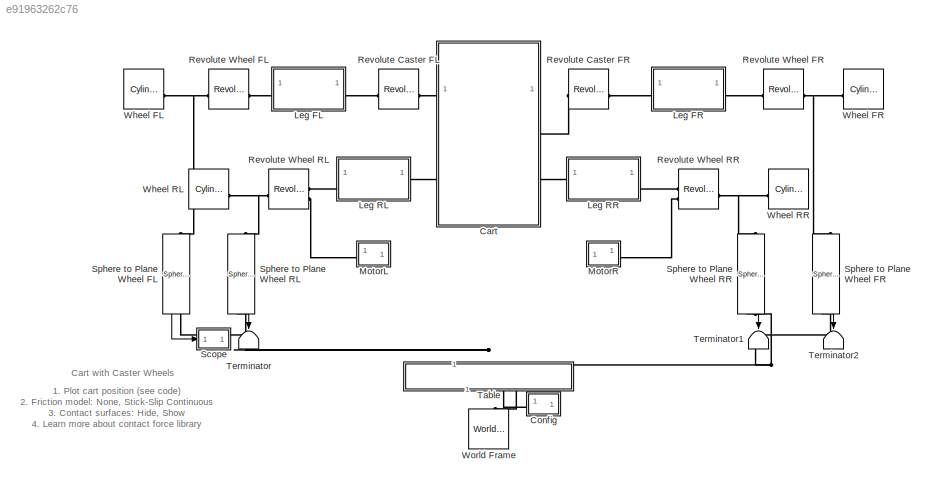
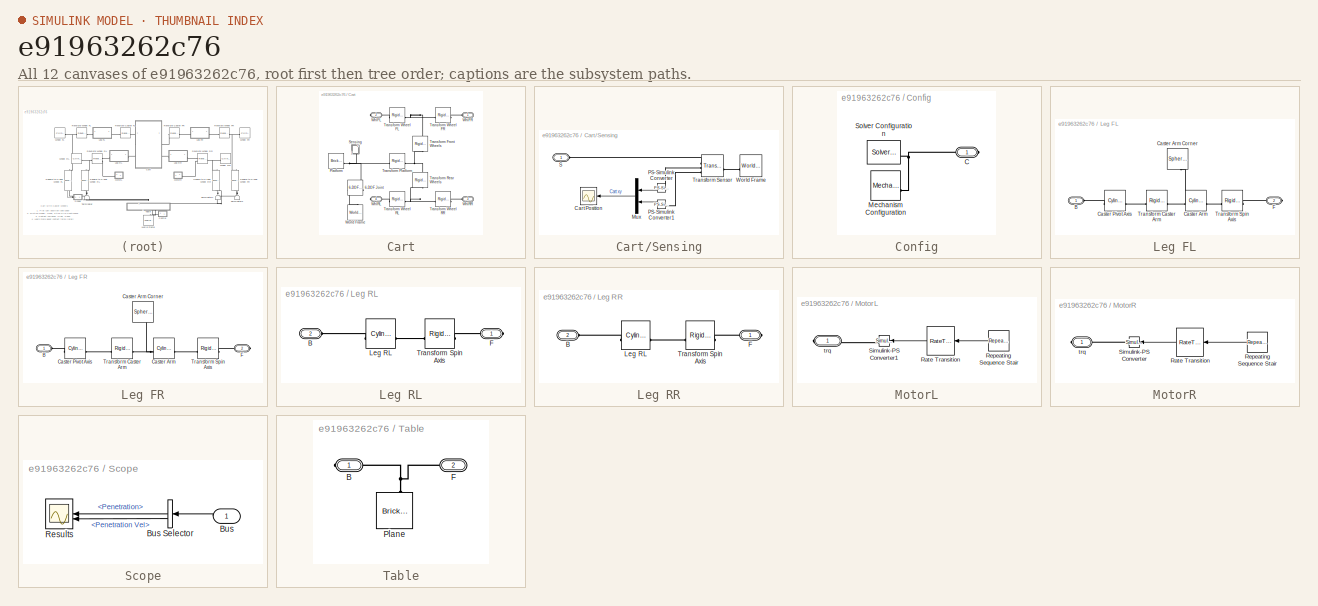
[diagram: thumbnail index - all 12 canvases of the model, root first then tree order]
MODEL slx_e91963262c76
KIND model
CONFIG AbsTol = 1e-5
CONFIG EnableMultiTasking = on
CONFIG FixedStep = 1e-3
CONFIG MaxStep = 0.01
CONFIG MinStep = auto
CONFIG RelTol = 1e-4
CONFIG SampleTimeConstraint = Unconstrained
CONFIG SolverName = ode23t
CONFIG StartFcn = tic;
CONFIG StartTime = 0.0
CONFIG StopFcn = Elapsed_Sim_Time = toc;\ndisp(['Elapsed Sim Time = ' num2str(Elapsed_Sim_Time)]);\n
CONFIG StopTime = 30
WORKSPACE source: MATLAB code (in-file)
WORKSPACE code: whl.rad = 0.02;
WORKSPACE code: whl.thickness = 0.005;
WORKSPACE code: axle.length = 0.2;
WORKSPACE code: axle.radius = 0.005;
WORKSPACE code: platform.width = 0.1;
WORKSPACE code: platform.length = 0.15;
WORKSPACE code: platform.thickness = 0.005;
WORKSPACE code: platform.offset = 0.05;
WORKSPACE code: caster_axis.rad = 0.005;
WORKSPACE code: caster_axis.length = 0.03;
WORKSPACE code: bumper.rad = platform.offset+whl.rad;
WORKSPACE code: table.length = 0.5;
WORKSPACE code: table.thickness = 0.01;
WORKSPACE code: tableWhl.contact.k = 1e3;
WORKSPACE code: tableWhl.contact.b = 1e2;
WORKSPACE code: steel.density = 8000; %kg/m^3
WORKSPACE code: start_pos.x = -0.2;
WORKSPACE code: start_pos.y = 0.2;
WORKSPACE l_whl_trq = [0 0 0 0.5 0 0 0 -0.5 1.0 0 0 0 -1.0 0.5 0 0 0 -0.5 -1.5 0 0 0 1.5].'*0.00005
WORKSPACE r_whl_trq = [0 0 0 2.0 0 0 0 -2.0 1.0 0 0 0 -1.0 1.0 0 0 0 -1.0 -1.5 0 0 0 1.5].'*0.00005
WORKSPACE muk = 0.7
WORKSPACE mus = 0.5
WORKSPACE vth = 1e-2  (= 0.01)
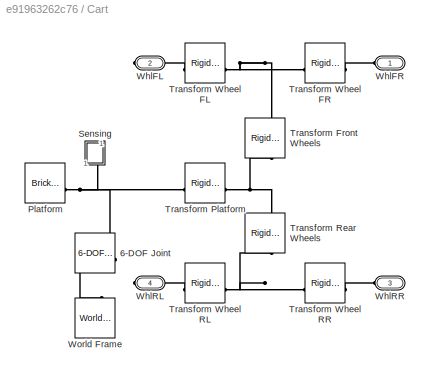
BLOCK [SubSystem] Cart
  Tag = CustomStyle
BLOCK [Reference] Cart/6-DOF Joint  REF=sm_lib/Joints/6-DOF Joint
  NameLocation = top
  SourceBlock = sm_lib/Joints/6-DOF Joint
  SourceType = 6-DOF Joint
BLOCK [Reference] Cart/Platform  REF=sm_lib/Body Elements/Brick Solid
  SourceBlock = sm_lib/Body Elements/Brick Solid
  SourceType = Brick Solid
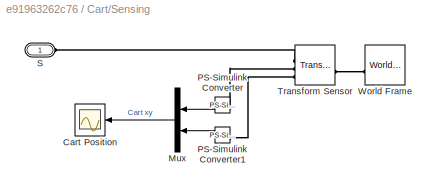
BLOCK [SubSystem] Cart/Sensing
  NameLocation = right
BLOCK [Scope] Cart/Sensing/Cart Position
  Floating = off
  NumInputPorts = 1
  ScopeSpecificationString = Simulink.scopes.TimeScopeBlockCfg('CurrentConfiguration', extmgr.ConfigurationSet(extmgr.Configuration('Core','General UI',true),extmgr.Configuration('Core','Source UI',true),extmgr.Configuration('Sources','WiredSimulink',true,'DataLoggingVariableName','ScopeData1','DataLoggingSaveFormat','Array','DataLoggingDecimation','1','DataLoggingDecimateData',true),extmgr.Configuration('Visuals','Time Domai...<+1611ch>
BLOCK [Mux] Cart/Sensing/Mux
  DisplayOption = bar
  Inputs = 2
  NameLocation = top
BLOCK [Reference] Cart/Sensing/PS-Simulink Converter  REF=nesl_utility/PS-Simulink
Converter
  NameLocation = top
  SourceBlock = nesl_utility/PS-Simulink\nConverter
  SourceType = PS-Simulink\nConverter
BLOCK [Reference] Cart/Sensing/PS-Simulink Converter1  REF=nesl_utility/PS-Simulink
Converter
  NameLocation = top
  SourceBlock = nesl_utility/PS-Simulink\nConverter
  SourceType = PS-Simulink\nConverter
BLOCK [PMIOPort] Cart/Sensing/S
  Side = Left
BLOCK [Reference] Cart/Sensing/Transform Sensor  REF=sm_lib/Frames and
Transforms/Transform
Sensor
  SourceBlock = sm_lib/Frames and\nTransforms/Transform\nSensor
  SourceType = Transform\nSensor
BLOCK [Reference] Cart/Sensing/World Frame  REF=sm_lib/Frames and
Transforms/World Frame
  SourceBlock = sm_lib/Frames and\nTransforms/World Frame
  SourceType = World Frame
BLOCK [Reference] Cart/Transform Front Wheels  REF=sm_lib/Frames and
Transforms/Rigid
Transform
  NameLocation = right
  SourceBlock = sm_lib/Frames and\nTransforms/Rigid\nTransform
  SourceType = Rigid\nTransform
BLOCK [Reference] Cart/Transform Platform  REF=sm_lib/Frames and
Transforms/Rigid
Transform
  SourceBlock = sm_lib/Frames and\nTransforms/Rigid\nTransform
  SourceType = Rigid\nTransform
BLOCK [Reference] Cart/Transform Rear Wheels  REF=sm_lib/Frames and
Transforms/Rigid
Transform
  NameLocation = right
  SourceBlock = sm_lib/Frames and\nTransforms/Rigid\nTransform
  SourceType = Rigid\nTransform
BLOCK [Reference] Cart/Transform Wheel FL  REF=sm_lib/Frames and
Transforms/Rigid
Transform
  SourceBlock = sm_lib/Frames and\nTransforms/Rigid\nTransform
  SourceType = Rigid\nTransform
BLOCK [Reference] Cart/Transform Wheel FR  REF=sm_lib/Frames and
Transforms/Rigid
Transform
  SourceBlock = sm_lib/Frames and\nTransforms/Rigid\nTransform
  SourceType = Rigid\nTransform
BLOCK [Reference] Cart/Transform Wheel RL  REF=sm_lib/Frames and
Transforms/Rigid
Transform
  SourceBlock = sm_lib/Frames and\nTransforms/Rigid\nTransform
  SourceType = Rigid\nTransform
BLOCK [Reference] Cart/Transform Wheel RR  REF=sm_lib/Frames and
Transforms/Rigid
Transform
  SourceBlock = sm_lib/Frames and\nTransforms/Rigid\nTransform
  SourceType = Rigid\nTransform
BLOCK [PMIOPort] Cart/WhlFL
  Port = 2
  Side = Right
BLOCK [PMIOPort] Cart/WhlFR
  Side = Left
BLOCK [PMIOPort] Cart/WhlRL
  Port = 4
  Side = Right
BLOCK [PMIOPort] Cart/WhlRR
  Port = 3
  Side = Left
BLOCK [Reference] Cart/World Frame  REF=sm_lib/Frames and
Transforms/World Frame
  NameLocation = left
  SourceBlock = sm_lib/Frames and\nTransforms/World Frame
  SourceType = World Frame
BLOCK [SubSystem] Config
BLOCK [PMIOPort] Config/C
  Side = Right
BLOCK [Reference] Config/Mechanism Configuration  REF=sm_lib/Utilities/Mechanism
Configuration
  SourceBlock = sm_lib/Utilities/Mechanism\nConfiguration
  SourceType = Mechanism\nConfiguration
BLOCK [Reference] Config/Solver Configuration  REF=nesl_utility/Solver
Configuration
  SourceBlock = nesl_utility/Solver\nConfiguration
  SourceType = Solver\nConfiguration
BLOCK [SubSystem] Leg FL
BLOCK [PMIOPort] Leg FL/B
  Side = Left
BLOCK [Reference] Leg FL/Caster Arm  REF=sm_lib/Body Elements/Cylindrical Solid
  SourceBlock = sm_lib/Body Elements/Cylindrical Solid
  SourceType = Cylindrical Solid
BLOCK [Reference] Leg FL/Caster Arm Corner  REF=sm_lib/Body Elements/Spherical Solid
  NameLocation = left
  SourceBlock = sm_lib/Body Elements/Spherical Solid
  SourceType = Spherical Solid
BLOCK [Reference] Leg FL/Caster Pivot Axis  REF=sm_lib/Body Elements/Cylindrical Solid
  SourceBlock = sm_lib/Body Elements/Cylindrical Solid
  SourceType = Cylindrical Solid
BLOCK [PMIOPort] Leg FL/F
  Port = 2
  Side = Right
BLOCK [Reference] Leg FL/Transform Caster Arm  REF=sm_lib/Frames and
Transforms/Rigid
Transform
  SourceBlock = sm_lib/Frames and\nTransforms/Rigid\nTransform
  SourceType = Rigid\nTransform
BLOCK [Reference] Leg FL/Transform Spin Axis  REF=sm_lib/Frames and
Transforms/Rigid
Transform
  SourceBlock = sm_lib/Frames and\nTransforms/Rigid\nTransform
  SourceType = Rigid\nTransform
BLOCK [SubSystem] Leg FR
BLOCK [PMIOPort] Leg FR/B
  Side = Left
BLOCK [Reference] Leg FR/Caster Arm  REF=sm_lib/Body Elements/Cylindrical Solid
  SourceBlock = sm_lib/Body Elements/Cylindrical Solid
  SourceType = Cylindrical Solid
BLOCK [Reference] Leg FR/Caster Arm Corner  REF=sm_lib/Body Elements/Spherical Solid
  NameLocation = left
  SourceBlock = sm_lib/Body Elements/Spherical Solid
  SourceType = Spherical Solid
BLOCK [Reference] Leg FR/Caster Pivot Axis  REF=sm_lib/Body Elements/Cylindrical Solid
  SourceBlock = sm_lib/Body Elements/Cylindrical Solid
  SourceType = Cylindrical Solid
BLOCK [PMIOPort] Leg FR/F
  Port = 2
  Side = Right
BLOCK [Reference] Leg FR/Transform Caster Arm  REF=sm_lib/Frames and
Transforms/Rigid
Transform
  SourceBlock = sm_lib/Frames and\nTransforms/Rigid\nTransform
  SourceType = Rigid\nTransform
BLOCK [Reference] Leg FR/Transform Spin Axis  REF=sm_lib/Frames and
Transforms/Rigid
Transform
  SourceBlock = sm_lib/Frames and\nTransforms/Rigid\nTransform
  SourceType = Rigid\nTransform
BLOCK [SubSystem] Leg RL
BLOCK [PMIOPort] Leg RL/B
  Port = 2
  Side = Left
BLOCK [PMIOPort] Leg RL/F
  Side = Right
BLOCK [Reference] Leg RL/Leg RL  REF=sm_lib/Body Elements/Cylindrical Solid
  SourceBlock = sm_lib/Body Elements/Cylindrical Solid
  SourceType = Cylindrical Solid
BLOCK [Reference] Leg RL/Transform Spin Axis  REF=sm_lib/Frames and
Transforms/Rigid
Transform
  SourceBlock = sm_lib/Frames and\nTransforms/Rigid\nTransform
  SourceType = Rigid\nTransform
BLOCK [SubSystem] Leg RR
BLOCK [PMIOPort] Leg RR/B
  Port = 2
  Side = Left
BLOCK [PMIOPort] Leg RR/F
  Side = Right
BLOCK [Reference] Leg RR/Leg RL  REF=sm_lib/Body Elements/Cylindrical Solid
  SourceBlock = sm_lib/Body Elements/Cylindrical Solid
  SourceType = Cylindrical Solid
BLOCK [Reference] Leg RR/Transform Spin Axis  REF=sm_lib/Frames and
Transforms/Rigid
Transform
  SourceBlock = sm_lib/Frames and\nTransforms/Rigid\nTransform
  SourceType = Rigid\nTransform
BLOCK [SubSystem] MotorL
BLOCK [RateTransition] MotorL/Rate Transition
BLOCK [Reference] MotorL/Repeating Sequence Stair  REF=simulink/Sources/Repeating
Sequence
Stair
  SourceBlock = simulink/Sources/Repeating\nSequence\nStair
  SourceType = Repeating Sequence Stair
BLOCK [Reference] MotorL/Simulink-PS Converter1  REF=nesl_utility/Simulink-PS
Converter
  SourceBlock = nesl_utility/Simulink-PS\nConverter
  SourceType = Simulink-PS\nConverter
BLOCK [PMIOPort] MotorL/trq
  NameLocation = top
  Side = Right
BLOCK [SubSystem] MotorR
BLOCK [RateTransition] MotorR/Rate Transition
BLOCK [Reference] MotorR/Repeating Sequence Stair  REF=simulink/Sources/Repeating
Sequence
Stair
  SourceBlock = simulink/Sources/Repeating\nSequence\nStair
  SourceType = Repeating Sequence Stair
BLOCK [Reference] MotorR/Simulink-PS Converter  REF=nesl_utility/Simulink-PS
Converter
  SourceBlock = nesl_utility/Simulink-PS\nConverter
  SourceType = Simulink-PS\nConverter
BLOCK [PMIOPort] MotorR/trq
  NameLocation = top
  Side = Right
BLOCK [Reference] Revolute Caster FL  REF=sm_lib/Joints/Revolute Joint
  SourceBlock = sm_lib/Joints/Revolute Joint
  SourceType = Revolute Joint
BLOCK [Reference] Revolute Caster FR  REF=sm_lib/Joints/Revolute Joint
  SourceBlock = sm_lib/Joints/Revolute Joint
  SourceType = Revolute Joint
BLOCK [Reference] Revolute Wheel FL  REF=sm_lib/Joints/Revolute Joint
  SourceBlock = sm_lib/Joints/Revolute Joint
  SourceType = Revolute Joint
BLOCK [Reference] Revolute Wheel FR  REF=sm_lib/Joints/Revolute Joint
  SourceBlock = sm_lib/Joints/Revolute Joint
  SourceType = Revolute Joint
BLOCK [Reference] Revolute Wheel RL  REF=sm_lib/Joints/Revolute Joint
  SourceBlock = sm_lib/Joints/Revolute Joint
  SourceType = Revolute Joint
BLOCK [Reference] Revolute Wheel RR  REF=sm_lib/Joints/Revolute Joint
  SourceBlock = sm_lib/Joints/Revolute Joint
  SourceType = Revolute Joint
BLOCK [SubSystem] Scope
  NameLocation = top
BLOCK [Inport] Scope/Bus
BLOCK [BusSelector] Scope/Bus Selector
  NameLocation = top
  OutputSignals = Penetration,Penetration Vel
BLOCK [Scope] Scope/Results
  Floating = off
  NameLocation = top
  NumInputPorts = 2
  ScopeSpecificationString = Simulink.scopes.TimeScopeBlockCfg('CurrentConfiguration', extmgr.ConfigurationSet(extmgr.Configuration('Core','General UI',true,'FigureColor',[0.501960784313725 0.501960784313725 0.501960784313725]),extmgr.Configuration('Core','Source UI',true),extmgr.Configuration('Sources','WiredSimulink',true,'DataLoggingVariableName','ScopeData1','DataLoggingSaveFormat','StructureWithTime','DataLoggingDecimati...<+3757ch>
  Tag = PublishScope
BLOCK [Reference] Sphere to Plane Wheel FL  REF=Contact_Forces_Lib/3D/Sphere to Plane Force
  NameLocation = left
  SourceBlock = Contact_Forces_Lib/3D/Sphere to Plane Force
  SourceProductName = Simscape Multibody Contact Forces Library
  SourceType = Sphere to Plane Force
BLOCK [Reference] Sphere to Plane Wheel FR  REF=Contact_Forces_Lib/3D/Sphere to Plane Force
  NameLocation = right
  SourceBlock = Contact_Forces_Lib/3D/Sphere to Plane Force
  SourceProductName = Simscape Multibody Contact Forces Library
  SourceType = Sphere to Plane Force
BLOCK [Reference] Sphere to Plane Wheel RL  REF=Contact_Forces_Lib/3D/Sphere to Plane Force
  NameLocation = right
  SourceBlock = Contact_Forces_Lib/3D/Sphere to Plane Force
  SourceProductName = Simscape Multibody Contact Forces Library
  SourceType = Sphere to Plane Force
BLOCK [Reference] Sphere to Plane Wheel RR  REF=Contact_Forces_Lib/3D/Sphere to Plane Force
  NameLocation = left
  SourceBlock = Contact_Forces_Lib/3D/Sphere to Plane Force
  SourceProductName = Simscape Multibody Contact Forces Library
  SourceType = Sphere to Plane Force
BLOCK [SubSystem] Table
  NameLocation = right
  Tag = CustomStyle
BLOCK [PMIOPort] Table/B
  NameLocation = top
  Side = Right
BLOCK [PMIOPort] Table/F
  NameLocation = top
  Port = 2
  Side = Left
BLOCK [Reference] Table/Plane  REF=sm_lib/Body Elements/Brick Solid
  NameLocation = right
  SourceBlock = sm_lib/Body Elements/Brick Solid
  SourceType = Brick Solid
BLOCK [Terminator] Terminator
  NameLocation = right
BLOCK [Terminator] Terminator1
  NameLocation = right
BLOCK [Terminator] Terminator2
  NameLocation = left
BLOCK [Reference] Wheel FL  REF=Parts_Lib/Cylinder
  SourceBlock = Parts_Lib/Cylinder
  SourceType = Solid Cylinder with Markings
  Tag = CustomStyle
BLOCK [Reference] Wheel FR  REF=Parts_Lib/Cylinder
  SourceBlock = Parts_Lib/Cylinder
  SourceType = Solid Cylinder with Markings
  Tag = CustomStyle
BLOCK [Reference] Wheel RL  REF=Parts_Lib/Cylinder
  SourceBlock = Parts_Lib/Cylinder
  SourceType = Solid Cylinder with Markings
  Tag = CustomStyle
BLOCK [Reference] Wheel RR  REF=Parts_Lib/Cylinder
  SourceBlock = Parts_Lib/Cylinder
  SourceType = Solid Cylinder with Markings
  Tag = CustomStyle
BLOCK [Reference] World Frame  REF=sm_lib/Frames and
Transforms/World Frame
  NameLocation = left
  SourceBlock = sm_lib/Frames and\nTransforms/World Frame
  SourceType = World Frame
ANNOTATION (root): 1. Plot cart position ( see code ) 2. Friction model: None , Stick-Slip Continuous 3. Contact surfaces: Hide , Show 4. Learn more about contact force library
ANNOTATION (root): Cart with Caster Wheels
LINE Cart/Sensing/Mux:1 -> Cart/Sensing/Cart Position:1
LINE Cart/Sensing/PS-Simulink Converter1:1 -> Cart/Sensing/Mux:2
LINE Cart/Sensing/PS-Simulink Converter:1 -> Cart/Sensing/Mux:1
LINE MotorL/Rate Transition:1 -> MotorL/Simulink-PS Converter1:1
LINE MotorL/Repeating Sequence Stair:1 -> MotorL/Rate Transition:1
LINE MotorR/Rate Transition:1 -> MotorR/Simulink-PS Converter:1
LINE MotorR/Repeating Sequence Stair:1 -> MotorR/Rate Transition:1
LINE Scope/Bus Selector:1 -> Scope/Results:1
LINE Scope/Bus Selector:2 -> Scope/Results:2
LINE Scope/Bus:1 -> Scope/Bus Selector:1
LINE Sphere to Plane Wheel FL:1 -> Scope:1
LINE Sphere to Plane Wheel FR:1 -> Terminator2:1
LINE Sphere to Plane Wheel RL:1 -> Terminator:1
LINE Sphere to Plane Wheel RR:1 -> Terminator1:1
PLINE Cart/6-DOF Joint:LConn1 -- Cart/World Frame:RConn1
PNET net1: Cart/6-DOF Joint:RConn1 -- Cart/Platform:RConn1 -- Cart/Sensing:LConn1 -- Cart/Transform Platform:LConn1
PLINE Cart/Sensing/PS-Simulink Converter1:LConn1 -- Cart/Sensing/Transform Sensor:RConn3
PLINE Cart/Sensing/PS-Simulink Converter:LConn1 -- Cart/Sensing/Transform Sensor:RConn2
PLINE Cart/Sensing/S:RConn1 -- Cart/Sensing/Transform Sensor:RConn1
PLINE Cart/Sensing/Transform Sensor:LConn1 -- Cart/Sensing/World Frame:RConn1
PNET net2: Cart/Transform Front Wheels:LConn1 -- Cart/Transform Platform:RConn1 -- Cart/Transform Rear Wheels:RConn1
PNET net3: Cart/Transform Front Wheels:RConn1 -- Cart/Transform Wheel FL:LConn1 -- Cart/Transform Wheel FR:RConn1
PNET net4: Cart/Transform Rear Wheels:LConn1 -- Cart/Transform Wheel RL:LConn1 -- Cart/Transform Wheel RR:RConn1
PLINE Cart/Transform Wheel FL:RConn1 -- Cart/WhlFL:RConn1
PLINE Cart/Transform Wheel FR:LConn1 -- Cart/WhlFR:RConn1
PLINE Cart/Transform Wheel RL:RConn1 -- Cart/WhlRL:RConn1
PLINE Cart/Transform Wheel RR:LConn1 -- Cart/WhlRR:RConn1
PLINE Cart:LConn1 -- Revolute Caster FR:LConn1
PLINE Cart:LConn2 -- Leg RR:LConn1
PLINE Cart:RConn1 -- Revolute Caster FL:LConn1
PLINE Cart:RConn2 -- Leg RL:LConn1
PNET net5: Config/C:RConn1 -- Config/Mechanism Configuration:RConn1 -- Config/Solver Configuration:RConn1
PNET net6: Config:RConn1 -- Table:RConn1 -- World Frame:RConn1
PLINE Leg FL/B:RConn1 -- Leg FL/Caster Pivot Axis:LConn1
PNET net7: Leg FL/Caster Arm Corner:RConn1 -- Leg FL/Caster Arm:LConn1 -- Leg FL/Transform Caster Arm:RConn1
PLINE Leg FL/Caster Arm:RConn1 -- Leg FL/Transform Spin Axis:LConn1
PLINE Leg FL/Caster Pivot Axis:RConn1 -- Leg FL/Transform Caster Arm:LConn1
PLINE Leg FL/F:RConn1 -- Leg FL/Transform Spin Axis:RConn1
PLINE Leg FL:LConn1 -- Revolute Caster FL:RConn1
PLINE Leg FL:RConn1 -- Revolute Wheel FL:LConn1
PLINE Leg FR/B:RConn1 -- Leg FR/Caster Pivot Axis:LConn1
PNET net8: Leg FR/Caster Arm Corner:RConn1 -- Leg FR/Caster Arm:LConn1 -- Leg FR/Transform Caster Arm:RConn1
PLINE Leg FR/Caster Arm:RConn1 -- Leg FR/Transform Spin Axis:LConn1
PLINE Leg FR/Caster Pivot Axis:RConn1 -- Leg FR/Transform Caster Arm:LConn1
PLINE Leg FR/F:RConn1 -- Leg FR/Transform Spin Axis:RConn1
PLINE Leg FR:LConn1 -- Revolute Caster FR:RConn1
PLINE Leg FR:RConn1 -- Revolute Wheel FR:LConn1
PLINE Leg RL/B:RConn1 -- Leg RL/Leg RL:LConn1
PLINE Leg RL/F:RConn1 -- Leg RL/Transform Spin Axis:RConn1
PLINE Leg RL/Leg RL:RConn1 -- Leg RL/Transform Spin Axis:LConn1
PLINE Leg RL:RConn1 -- Revolute Wheel RL:LConn1
PLINE Leg RR/B:RConn1 -- Leg RR/Leg RL:LConn1
PLINE Leg RR/F:RConn1 -- Leg RR/Transform Spin Axis:RConn1
PLINE Leg RR/Leg RL:RConn1 -- Leg RR/Transform Spin Axis:LConn1
PLINE Leg RR:RConn1 -- Revolute Wheel RR:LConn1
PLINE MotorL/Simulink-PS Converter1:RConn1 -- MotorL/trq:RConn1
PLINE MotorL:RConn1 -- Revolute Wheel RL:LConn2
PLINE MotorR/Simulink-PS Converter:RConn1 -- MotorR/trq:RConn1
PLINE MotorR:RConn1 -- Revolute Wheel RR:LConn2
PNET net9: Revolute Wheel FL:RConn1 -- Sphere to Plane Wheel FL:LConn1 -- Wheel FL:LConn1
PNET net10: Revolute Wheel FR:RConn1 -- Sphere to Plane Wheel FR:LConn1 -- Wheel FR:LConn1
PNET net11: Revolute Wheel RL:RConn1 -- Sphere to Plane Wheel RL:LConn1 -- Wheel RL:LConn1
PNET net12: Revolute Wheel RR:RConn1 -- Sphere to Plane Wheel RR:LConn1 -- Wheel RR:LConn1
PNET net13: Sphere to Plane Wheel FL:RConn1 -- Sphere to Plane Wheel FR:RConn1 -- Sphere to Plane Wheel RL:RConn1 -- Sphere to Plane Wheel RR:RConn1 -- Table:LConn1
PNET net14: Table/B:RConn1 -- Table/F:RConn1 -- Table/Plane:RConn1
note: PNET lines group multi-terminal physical nets as a canonical sorted terminal list (undirected conserving connections); 2-terminal nets keep the pairwise PLINE form
